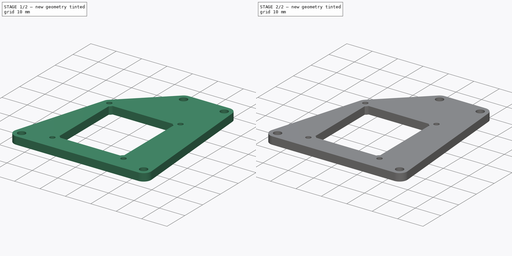
[diagram: build sequence overview — one tinted view per stage of 2, left to right]
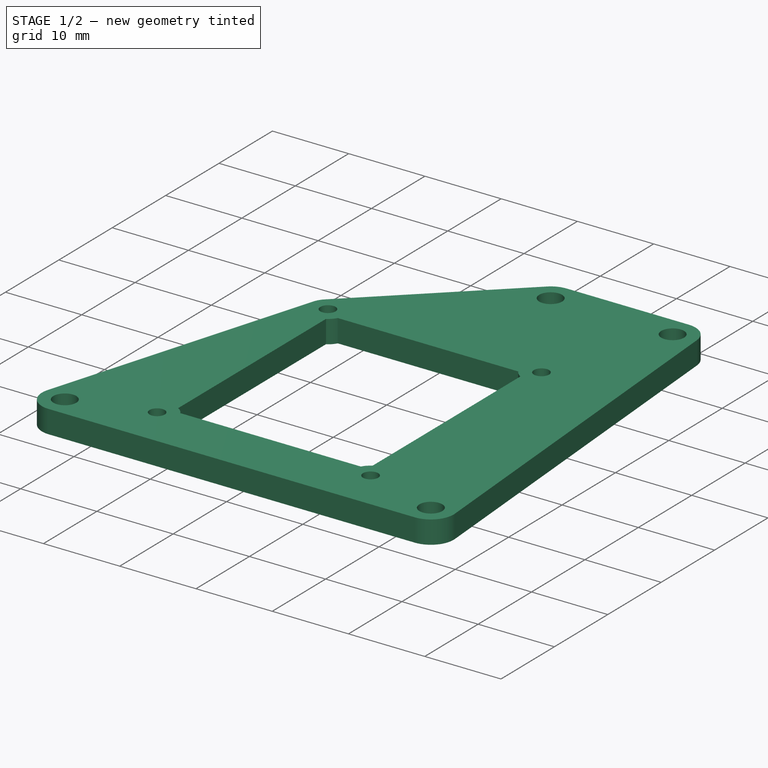
[diagram: stage 1 of 2 — iso view after this stage's code; geometry added in this stage tinted green]
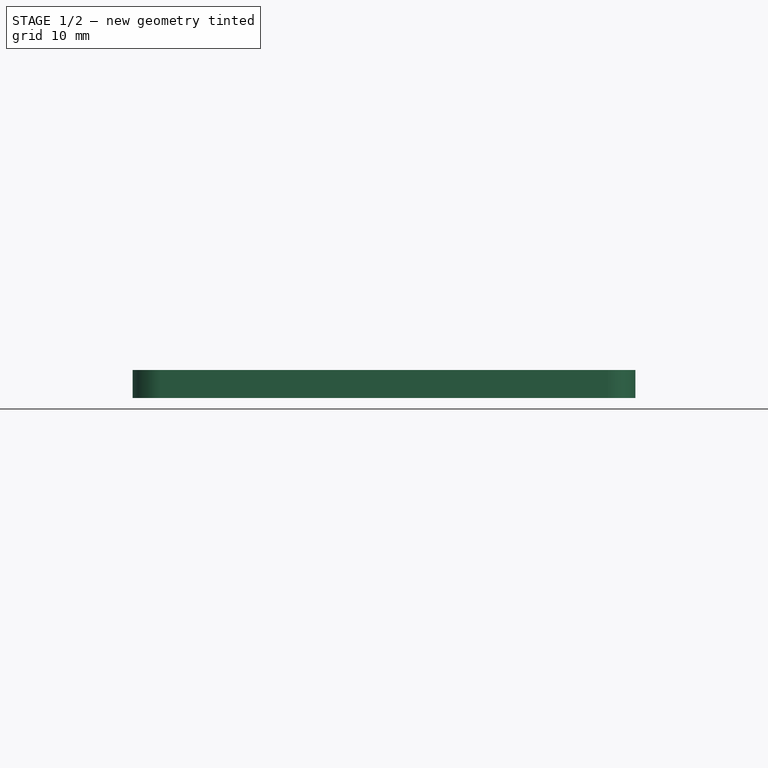
[diagram: stage 1 of 2 — front view after this stage's code; geometry added in this stage tinted green]
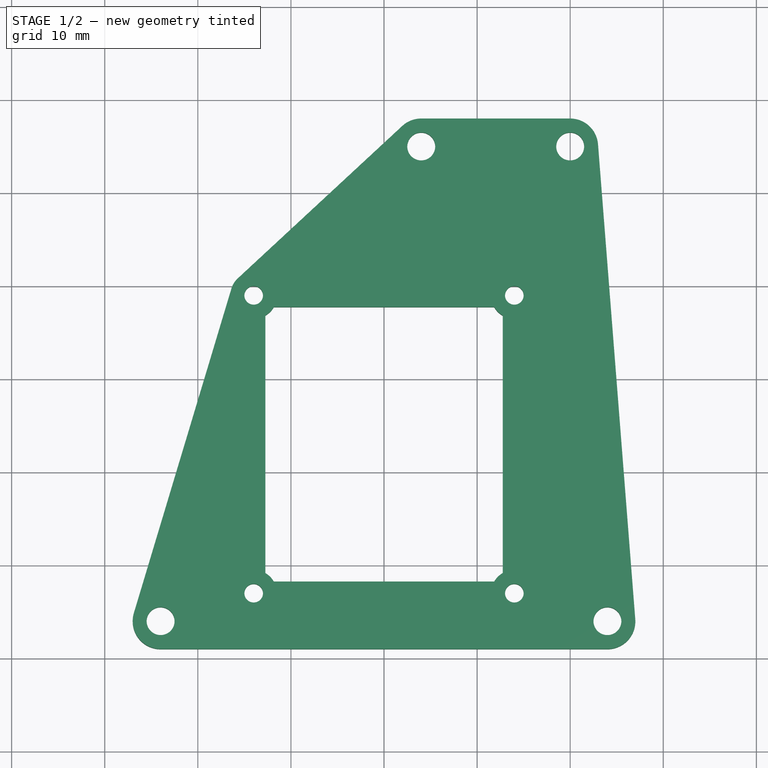
[diagram: stage 1 of 2 — top view after this stage's code; geometry added in this stage tinted green]
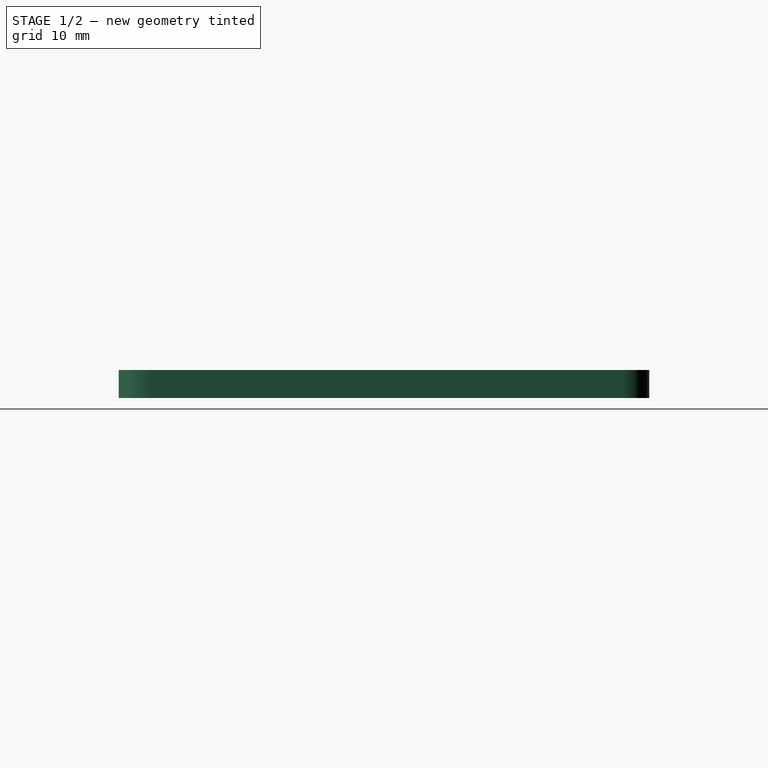
[diagram: stage 1 of 2 — right view after this stage's code; geometry added in this stage tinted green]
FCSTD DOCUMENT  (FreeCAD 0.17R13541 (Git))
Label: top
License: All rights reserved
LicenseURL: http://en.wikipedia.org/wiki/All_rights_reserved
objects: Sketcher::SketchObject×3, PartDesign::Pad×1, PartDesign::Pocket×1, PartDesign::Body×1
note: 8 computed .brp shape members not serialized (recipe doc carries the construction recipe); baked Part::Feature solids carry a one-line shape summary decoded from their .brp

FEATURE [Sketcher::SketchObject] Sketch
  MapMode = 5
  Support = -> [XY_Plane]
  sketch-geometry (54):
    g0: LineSegment [constr] StartX=-24.5 StartY=29 StartZ=0 EndX=24.5 EndY=29 EndZ=0
    g1: LineSegment [constr] StartX=-24.5 StartY=29 StartZ=0 EndX=-24.5 EndY=-29 EndZ=0
    g2: LineSegment [constr] StartX=-24.5 StartY=-29 StartZ=0 EndX=24.5 EndY=-29 EndZ=0
    g3: LineSegment [constr] StartX=24.5 StartY=-29 StartZ=0 EndX=24.5 EndY=29 EndZ=0
    g4: GeomPoint X=0 Y=29 Z=0
    g5: GeomPoint X=-24.5 Y=0 Z=0
    g6: LineSegment [constr] StartX=-24 StartY=-16 StartZ=0 EndX=24 EndY=-16 EndZ=0
    g7: LineSegment [constr] StartX=24 StartY=-16 StartZ=0 EndX=24 EndY=35 EndZ=0
    g8: LineSegment [constr] StartX=24 StartY=35 StartZ=0 EndX=-4 EndY=35 EndZ=0
    g9: LineSegment [constr] StartX=-4 StartY=35 StartZ=0 EndX=-20 EndY=35 EndZ=0
    g10: LineSegment [constr] StartX=-20 StartY=35 StartZ=0 EndX=-24 EndY=35 EndZ=0
    g11: LineSegment [constr] StartX=-24 StartY=35 StartZ=0 EndX=-24 EndY=-16 EndZ=0
    g12: GeomPoint X=0 Y=-16 Z=0
    g13: GeomPoint X=0 Y=-29 Z=0
    g14: Circle CenterX=24 CenterY=-16 CenterZ=0 NormalX=0 NormalY=0 NormalZ=1 AngleXU=0 Radius=1.5
    g15: Circle CenterX=-24 CenterY=-16 CenterZ=0 NormalX=0 NormalY=0 NormalZ=1 AngleXU=0 Radius=1.5
    g16: Circle CenterX=-20 CenterY=35 CenterZ=0 NormalX=0 NormalY=0 NormalZ=1 AngleXU=0 Radius=1.5
    g17: Circle CenterX=-4 CenterY=35 CenterZ=0 NormalX=0 NormalY=0 NormalZ=1 AngleXU=0 Radius=1.5
    g18: ArcOfCircle CenterX=24 CenterY=-16 CenterZ=0 NormalX=0 NormalY=0 NormalZ=1 AngleXU=0 Radius=3 StartAngle=4.71239 EndAngle=6.60098
    g19: ArcOfCircle CenterX=-20 CenterY=35 CenterZ=0 NormalX=0 NormalY=0 NormalZ=1 AngleXU=0 Radius=3 StartAngle=1.5708 EndAngle=3.06332
    g20: ArcOfCircle CenterX=-4 CenterY=35 CenterZ=0 NormalX=0 NormalY=0 NormalZ=1 AngleXU=0 Radius=3 StartAngle=0.739273 EndAngle=1.5708
    g21: LineSegment StartX=-20 StartY=38 StartZ=0 EndX=-4 EndY=38 EndZ=0
    g22: Circle CenterX=-14 CenterY=16 CenterZ=0 NormalX=0 NormalY=0 NormalZ=1 AngleXU=0 Radius=1
    g23: Circle CenterX=14 CenterY=16 CenterZ=0 NormalX=0 NormalY=0 NormalZ=1 AngleXU=0 Radius=1
    g24: Circle CenterX=-14 CenterY=-16 CenterZ=0 NormalX=0 NormalY=0 NormalZ=1 AngleXU=0 Radius=1
    g25: Circle CenterX=14 CenterY=-16 CenterZ=0 NormalX=0 NormalY=0 NormalZ=1 AngleXU=0 Radius=1
    g26: LineSegment [constr] StartX=-14 StartY=-16 StartZ=0 EndX=14 EndY=-16 EndZ=0
    g27: LineSegment [constr] StartX=14 StartY=-16 StartZ=0 EndX=14 EndY=16 EndZ=0
    g28: LineSegment [constr] StartX=-14 StartY=16 StartZ=0 EndX=14 EndY=16 EndZ=0
    g29: LineSegment [constr] StartX=-14 StartY=16 StartZ=0 EndX=-14 EndY=-16 EndZ=0
    g30: ArcOfCircle CenterX=-14 CenterY=16 CenterZ=0 NormalX=0 NormalY=0 NormalZ=1 AngleXU=0 Radius=2.5 StartAngle=5.23599 EndAngle=5.75959
    g31: ArcOfCircle CenterX=-14 CenterY=-16 CenterZ=0 NormalX=0 NormalY=0 NormalZ=1 AngleXU=0 Radius=2.5 StartAngle=0.523599 EndAngle=1.0472
    g32: ArcOfCircle CenterX=14 CenterY=16 CenterZ=0 NormalX=0 NormalY=0 NormalZ=1 AngleXU=0 Radius=2.5 StartAngle=0.317799 EndAngle=0.739273
    g33: GeomPoint X=0 Y=-16 Z=0
    g34: GeomPoint X=-14 Y=0 Z=0
    g35: ArcOfCircle CenterX=-24 CenterY=-16 CenterZ=0 NormalX=0 NormalY=0 NormalZ=1 AngleXU=0 Radius=3 StartAngle=3.06332 EndAngle=4.71239
    g36: LineSegment StartX=24 StartY=-19 StartZ=0 EndX=-24 EndY=-19 EndZ=0
    g37: LineSegment StartX=16.3748 StartY=16.7812 StartZ=0 EndX=26.8498 EndY=-15.0626 EndZ=0
    g38: LineSegment StartX=15.8474 StartY=17.6844 StartZ=0 EndX=-1.78312 EndY=37.0213 EndZ=0
    g39: LineSegment StartX=-22.9908 StartY=35.2346 StartZ=0 EndX=-26.9908 EndY=-15.7654 EndZ=0
    g40: LineSegment StartX=-12.75 StartY=13.8349 StartZ=0 EndX=-12.75 EndY=-13.8349 EndZ=0
    g41: LineSegment StartX=11.8349 StartY=14.75 StartZ=0 EndX=-11.8349 EndY=14.75 EndZ=0
    g42: LineSegment [constr] StartX=-11.8349 StartY=-14.75 StartZ=0 EndX=-14 EndY=-16 EndZ=0
    g43: LineSegment [constr] StartX=-12.75 StartY=-13.8349 StartZ=0 EndX=-14 EndY=-16 EndZ=0
    g44: LineSegment [constr] StartX=-11.8349 StartY=14.75 StartZ=0 EndX=-14 EndY=16 EndZ=0
    g45: ArcOfCircle CenterX=14 CenterY=16 CenterZ=0 NormalX=0 NormalY=0 NormalZ=1 AngleXU=0 Radius=2.5 StartAngle=3.66519 EndAngle=4.18879
    g46: LineSegment [constr] StartX=11.8349 StartY=14.75 StartZ=0 EndX=14 EndY=16 EndZ=0
    g47: ArcOfCircle CenterX=14 CenterY=-16 CenterZ=0 NormalX=0 NormalY=0 NormalZ=1 AngleXU=0 Radius=2.5 StartAngle=2.0944 EndAngle=2.61799
    g48: LineSegment [constr] StartX=12.75 StartY=13.8349 StartZ=0 EndX=14 EndY=16 EndZ=0
    g49: LineSegment [constr] StartX=-12.75 StartY=13.8349 StartZ=0 EndX=-14 EndY=16 EndZ=0
    g50: LineSegment [constr] StartX=11.8349 StartY=-14.75 StartZ=0 EndX=14 EndY=-16 EndZ=0
    g51: LineSegment StartX=12.75 StartY=-13.8349 StartZ=0 EndX=12.75 EndY=13.8349 EndZ=0
    g52: LineSegment StartX=-11.8349 StartY=-14.75 StartZ=0 EndX=11.8349 EndY=-14.75 EndZ=0
    g53: LineSegment [constr] StartX=12.75 StartY=-13.8349 StartZ=0 EndX=14 EndY=-16 EndZ=0
  constraints (136):
    c: Horizontal(g0)
    c: Coincident(g1,g0)
    c: Vertical(g1)
    c: Coincident(g2,g1)
    c: Horizontal(g2)
    c: Coincident(g3,g2)
    c: Coincident(g3,g0)
    c: Vertical(g3)
    c: Distance(g2) = 49
    c: Distance(g1) = 58
    c: PointOnObject(g4,g-2)
    c: PointOnObject(g5,g-1)
    c: Symmetric(g1,g1,g5)
    c: Symmetric(g0,g0,g4)
    c: Horizontal(g6)
    c: Coincident(g7,g6)
    c: Vertical(g7)
    c: Coincident(g8,g7)
    c: Horizontal(g8)
    c: Coincident(g9,g8)
    c: Horizontal(g9)
    c: Coincident(g10,g9)
    c: Horizontal(g10)
    c: Coincident(g11,g10)
    c: Coincident(g11,g6)
    c: Vertical(g11)
    c: Distance(g6) = 48
    c: PointOnObject(g12,g-2)
    c: Symmetric(g6,g6,g12)
    c: Distance(g8) = 28
    c: Distance(g9) = 16
    c: PointOnObject(g13,g2)
    c: PointOnObject(g13,g-2)
    c: Distance(g12,g13) = 13
    c: Coincident(g14,g6)
    c: Coincident(g15,g6)
    c: Radius(g15) = 1.5
    c: Radius(g14) = 1.5
    c: Coincident(g16,g9)
    c: Coincident(g17,g8)
    c: Radius(g17) = 1.5
    c: Radius(g16) = 1.5
    c: Distance(g11) = 51
    c: Coincident(g18,g6)
    c: Radius(g18) = 3
    c: Coincident(g19,g9)
    c: Coincident(g20,g8)
    c: Radius(g19) = 3
    c: Radius(g20) = 3
    c: Horizontal(g21)
    c: Tangent(g21,g20)
    c: Coincident(g26,g24)
    c: Coincident(g26,g25)
    c: Horizontal(g26)
    c: Coincident(g27,g25)
    c: Coincident(g27,g23)
    c: Coincident(g28,g22)
    c: Coincident(g28,g23)
    c: Coincident(g29,g22)
    c: Coincident(g29,g24)
    c: Vertical(g29)
    c: Horizontal(g28)
    c: Vertical(g27)
    c: Radius(g22) = 1
    c: Radius(g23) = 1
    c: Radius(g25) = 1
    c: Radius(g24) = 1
    c: Coincident(g30,g22)
    c: Coincident(g31,g24)
    c: Radius(g31) = 2.5
    c: Coincident(g32,g23)
    c: Radius(g32) = 2.5
    c: Distance(g27) = 32
    c: Distance(g26) = 28
    c: PointOnObject(g33,g-2)
    c: Symmetric(g26,g26,g33)
    c: PointOnObject(g34,g-1)
    c: Symmetric(g29,g29,g34)
    c: Coincident(g35,g6)
    c: Radius(g35) = 3
    c: Horizontal(g36)
    c: Tangent(g36,g18) = 1.5708
    c: Tangent(g37,g18) = 1.5708
    c: Coincident(g20,g21)
    c: Tangent(g38,g20) = -1.5708
    c: Tangent(g38,g32)
    c: Tangent(g19,g21) = 1.5708
    c: Tangent(g39,g35) = -1.5708
    c: Tangent(g39,g19) = -1.5708
    c: Vertical(g40)
    c: Horizontal(g41)
    c: Angle(g24,g29) = 0.523599
    c: Angle(g26,g24) = 0.523599
    c: Angle(g22,g28) = 0.523599
    c: Angle(g27,g25) = 0.523599
    c: Coincident(g30,g40)
    c: Coincident(g30,g41)
    c: Coincident(g31,g40)
    c: Coincident(g42,g31)
    c: Coincident(g42,g24)
    c: Coincident(g43,g31)
    c: Coincident(g43,g24)
    c: Angle(g26,g42) = 0.523599
    c: Angle(g43,g29) = 0.523599
    c: Coincident(g44,g30)
    c: Coincident(g44,g22)
    c: Angle(g44,g28) = 0.523599
    c: Coincident(g45,g41)
    c: Coincident(g32,g45)
    c: Coincident(g32,g38)
    c: Tangent(g32,g37) = 1.5708
    c: Equal(g45,g32)
    c: Coincident(g46,g41)
    c: Coincident(g46,g23)
    c: Angle(g23,g27) = 0.523599
    c: Angle(g27,g25) = 0.523599
    c: Angle(g25,g6) = 0.523599
    c: Coincident(g48,g45)
    c: Coincident(g48,g23)
    c: Angle(g48,g27) = 0.523599
    c: Coincident(g49,g22)
    c: Coincident(g51,g47)
    c: Coincident(g51,g45)
    c: Vertical(g51)
    c: Angle(g50,g6) = 0.523599
    c: Angle(g28,g46) = 0.523599
    c: Angle(g29,g49) = 0.523599
    c: Coincident(g52,g31)
    c: Coincident(g52,g47)
    c: Horizontal(g52)
    c: Tangent(g35,g36)
    c: Coincident(g53,g47)
    c: Coincident(g53,g25)
    c: Angle(g27,g53) = 0.523599
    c: Radius(g47) = 2.5
    c: Radius(g30) = 2.5
FEATURE [Sketcher::SketchObject] Sketch001
  MapMode = 5
  Support = -> [XY_Plane]
  sketch-geometry (48):
    g0: LineSegment [constr] StartX=-24.5 StartY=29 StartZ=0 EndX=-24.5 EndY=-29 EndZ=0
    g1: LineSegment [constr] StartX=-24.5 StartY=-29 StartZ=0 EndX=24.5 EndY=-29 EndZ=0
    g2: LineSegment [constr] StartX=24.5 StartY=-29 StartZ=0 EndX=24.5 EndY=29 EndZ=0
    g3: LineSegment [constr] StartX=24.5 StartY=29 StartZ=0 EndX=-24.5 EndY=29 EndZ=0
    g4: GeomPoint X=0 Y=-29 Z=0
    g5: GeomPoint X=-24.5 Y=0 Z=0
    g6: LineSegment [constr] StartX=-24 StartY=-16 StartZ=0 EndX=24 EndY=-16 EndZ=0
    g7: LineSegment [constr] StartX=-24 StartY=-16 StartZ=0 EndX=-24 EndY=35 EndZ=0
    g8: LineSegment [constr] StartX=-24 StartY=35 StartZ=0 EndX=4 EndY=35 EndZ=0
    g9: LineSegment [constr] StartX=4 StartY=35 StartZ=0 EndX=20 EndY=35 EndZ=0
    g10: LineSegment [constr] StartX=20 StartY=35 StartZ=0 EndX=24 EndY=35 EndZ=0
    g11: LineSegment [constr] StartX=24 StartY=35 StartZ=0 EndX=24 EndY=-16 EndZ=0
    g12: GeomPoint X=0 Y=-16 Z=0
    g13: Circle CenterX=20 CenterY=35 CenterZ=0 NormalX=0 NormalY=0 NormalZ=1 AngleXU=0 Radius=1.5
    g14: Circle CenterX=4 CenterY=35 CenterZ=0 NormalX=0 NormalY=0 NormalZ=1 AngleXU=0 Radius=1.5
    g15: Circle CenterX=-24 CenterY=-16 CenterZ=0 NormalX=0 NormalY=0 NormalZ=1 AngleXU=0 Radius=1.5
    g16: Circle CenterX=24 CenterY=-16 CenterZ=0 NormalX=0 NormalY=0 NormalZ=1 AngleXU=0 Radius=1.5
    g17: LineSegment StartX=26.9908 StartY=-15.7654 StartZ=0 EndX=22.9908 EndY=35.2346 EndZ=0
    g18: LineSegment StartX=-24 StartY=-19 StartZ=0 EndX=24 EndY=-19 EndZ=0
    g19: ArcOfCircle CenterX=-24 CenterY=-16 CenterZ=0 NormalX=0 NormalY=0 NormalZ=1 AngleXU=0 Radius=3 StartAngle=2.84956 EndAngle=4.71239
    g20: ArcOfCircle CenterX=24 CenterY=-16 CenterZ=0 NormalX=0 NormalY=0 NormalZ=1 AngleXU=0 Radius=3 StartAngle=4.71239 EndAngle=6.36146
    g21: ArcOfCircle CenterX=20 CenterY=35 CenterZ=0 NormalX=0 NormalY=0 NormalZ=1 AngleXU=0 Radius=3 StartAngle=0.0782711 EndAngle=1.5708
    g22: ArcOfCircle CenterX=4 CenterY=35 CenterZ=0 NormalX=0 NormalY=0 NormalZ=1 AngleXU=0 Radius=3 StartAngle=1.5708 EndAngle=2.3182
    g23: LineSegment StartX=20 StartY=38 StartZ=0 EndX=4 EndY=38 EndZ=0
    g24: LineSegment [constr] StartX=-14 StartY=19 StartZ=0 EndX=-14 EndY=-13 EndZ=0
    g25: LineSegment [constr] StartX=-14 StartY=-13 StartZ=0 EndX=14 EndY=-13 EndZ=0
    g26: LineSegment [constr] StartX=14 StartY=-13 StartZ=0 EndX=14 EndY=19 EndZ=0
    g27: LineSegment [constr] StartX=14 StartY=19 StartZ=0 EndX=-14 EndY=19 EndZ=0
    g28: GeomPoint X=0 Y=-13 Z=0
    g29: Circle CenterX=-14 CenterY=19 CenterZ=0 NormalX=0 NormalY=0 NormalZ=1 AngleXU=0 Radius=1
    g30: ArcOfCircle CenterX=-14 CenterY=19 CenterZ=0 NormalX=0 NormalY=0 NormalZ=1 AngleXU=0 Radius=2.5 StartAngle=5.23599 EndAngle=5.75959
    g31: Circle CenterX=14 CenterY=19 CenterZ=0 NormalX=0 NormalY=0 NormalZ=1 AngleXU=0 Radius=1
    g32: ArcOfCircle CenterX=14 CenterY=19 CenterZ=0 NormalX=0 NormalY=0 NormalZ=1 AngleXU=0 Radius=2.5 StartAngle=3.66519 EndAngle=4.18879
    g33: ArcOfCircle CenterX=-14 CenterY=-13 CenterZ=0 NormalX=0 NormalY=0 NormalZ=1 AngleXU=0 Radius=2.5 StartAngle=0.523599 EndAngle=1.0472
    g34: Circle CenterX=-14 CenterY=-13 CenterZ=0 NormalX=0 NormalY=0 NormalZ=1 AngleXU=0 Radius=1
    g35: Circle CenterX=14 CenterY=-13 CenterZ=0 NormalX=0 NormalY=0 NormalZ=1 AngleXU=0 Radius=1
    g36: ArcOfCircle CenterX=14 CenterY=-13 CenterZ=0 NormalX=0 NormalY=0 NormalZ=1 AngleXU=0 Radius=2.5 StartAngle=2.0944 EndAngle=2.61799
    g37: LineSegment StartX=1.96079 StartY=37.2004 StartZ=0 EndX=-15.6993 EndY=20.8337 EndZ=0
    g38: LineSegment StartX=-11.8349 StartY=-11.75 StartZ=0 EndX=11.8349 EndY=-11.75 EndZ=0
    g39: LineSegment StartX=-12.75 StartY=-10.8349 StartZ=0 EndX=-12.75 EndY=16.8349 EndZ=0
    g40: LineSegment StartX=-11.8349 StartY=17.75 StartZ=0 EndX=11.8349 EndY=17.75 EndZ=0
    g41: LineSegment StartX=12.75 StartY=16.8349 StartZ=0 EndX=12.75 EndY=-10.8349 EndZ=0
    g42: ArcOfCircle CenterX=-14 CenterY=19 CenterZ=0 NormalX=0 NormalY=0 NormalZ=1 AngleXU=0 Radius=2.5 StartAngle=2.31819 EndAngle=2.84956
    g43: LineSegment [constr] StartX=-11.8349 StartY=17.75 StartZ=0 EndX=-14 EndY=19 EndZ=0
    g44: LineSegment [constr] StartX=-12.75 StartY=16.8349 StartZ=0 EndX=-14 EndY=19 EndZ=0
    g45: LineSegment [constr] StartX=-14 StartY=-13 StartZ=0 EndX=-11.8349 EndY=-11.75 EndZ=0
    g46: LineSegment [constr] StartX=12.75 StartY=-10.8349 StartZ=0 EndX=14 EndY=-13 EndZ=0
    g47: LineSegment StartX=-26.873 StartY=-15.1363 StartZ=0 EndX=-16.3941 EndY=19.7198 EndZ=0
  constraints (115):
    c: Vertical(g0)
    c: Coincident(g1,g0)
    c: Horizontal(g1)
    c: Coincident(g2,g1)
    c: Vertical(g2)
    c: Coincident(g3,g2)
    c: Coincident(g3,g0)
    c: Horizontal(g3)
    c: PointOnObject(g4,g-2)
    c: PointOnObject(g5,g-1)
    c: Symmetric(g0,g0,g5)
    c: Symmetric(g1,g1,g4)
    c: Distance(g3) = 49
    c: Distance(g0) = 58
    c: Horizontal(g6)
    c: Coincident(g7,g6)
    c: Vertical(g7)
    c: Coincident(g8,g7)
    c: Horizontal(g8)
    c: Coincident(g9,g8)
    c: Horizontal(g9)
    c: Coincident(g10,g9)
    c: Horizontal(g10)
    c: Coincident(g11,g10)
    c: Coincident(g11,g6)
    c: Vertical(g11)
    c: Distance(g6) = 48
    c: Distance(g8) = 28
    c: Distance(g9) = 16
    c: PointOnObject(g12,g-2)
    c: Symmetric(g6,g6,g12)
    c: Distance(g7) = 51
    c: Distance(g12,g4) = 13
    c: Coincident(g13,g9)
    c: Coincident(g14,g8)
    c: Coincident(g15,g6)
    c: Coincident(g16,g6)
    c: Radius(g15) = 1.5
    c: Radius(g16) = 1.5
    c: Radius(g14) = 1.5
    c: Radius(g13) = 1.5
    c: Horizontal(g18)
    c: Coincident(g19,g6)
    c: Tangent(g19,g18) = -1.5708
    c: Radius(g19) = 3
    c: Coincident(g20,g6)
    c: Tangent(g20,g18) = -1.5708
    c: Tangent(g20,g17) = -1.5708
    c: Coincident(g21,g9)
    c: Tangent(g21,g17) = -1.5708
    c: Radius(g21) = 3
    c: Coincident(g22,g8)
    c: Horizontal(g23)
    c: Tangent(g23,g22) = -1.5708
    c: Tangent(g23,g21) = -1.5708
    c: Vertical(g24)
    c: Coincident(g25,g24)
    c: Horizontal(g25)
    c: Coincident(g26,g25)
    c: Vertical(g26)
    c: Coincident(g27,g26)
    c: Coincident(g27,g24)
    c: Horizontal(g27)
    c: Distance(g24) = 32
    c: Distance(g27) = 28
    c: PointOnObject(g28,g-2)
    c: Symmetric(g25,g25,g28)
    c: Coincident(g29,g24)
    c: Coincident(g30,g24)
    c: Radius(g30) = 2.5
    c: Radius(g29) = 1
    c: Coincident(g31,g26)
    c: Coincident(g32,g26)
    c: Radius(g31) = 1
    c: Radius(g32) = 2.5
    c: Distance(g12,g28) = 3
    c: Coincident(g33,g24)
    c: Coincident(g34,g24)
    c: Coincident(g35,g25)
    c: Coincident(g36,g25)
    c: Radius(g34) = 1
    c: Radius(g33) = 2.5
    c: Radius(g36) = 2.5
    c: Radius(g35) = 1
    c: Tangent(g37,g30)
    c: Tangent(g37,g22) = -1.5708
    c: Horizontal(g38)
    c: Vertical(g39)
    c: Horizontal(g40)
    c: Vertical(g41)
    c: Coincident(g32,g41)
    c: Coincident(g32,g40)
    c: Equal(g30,g42)
    c: Coincident(g42,g37)
    c: Coincident(g30,g42)
    c: Coincident(g30,g39)
    c: Coincident(g30,g40)
    c: Coincident(g33,g38)
    c: Coincident(g33,g39)
    c: Coincident(g36,g38)
    c: Coincident(g36,g41)
    c: Coincident(g43,g30)
    c: Coincident(g43,g24)
    c: Angle(g43,g27) = 0.523599
    c: Coincident(g44,g30)
    c: Coincident(g44,g24)
    c: Angle(g24,g44) = 0.523599
    c: Coincident(g45,g24)
    c: Coincident(g45,g33)
    c: Angle(g25,g45) = 0.523599
    c: Coincident(g46,g36)
    c: Coincident(g46,g25)
    c: Angle(g26,g46) = 0.523599
    c: Tangent(g47,g42) = 1.5708
    c: Tangent(g47,g19) = 1.5708
FEATURE [PartDesign::Pad] Pad
  Length = 1.5
  Length2 = 1.5
  Profile = -> Sketch001
  Type = 4
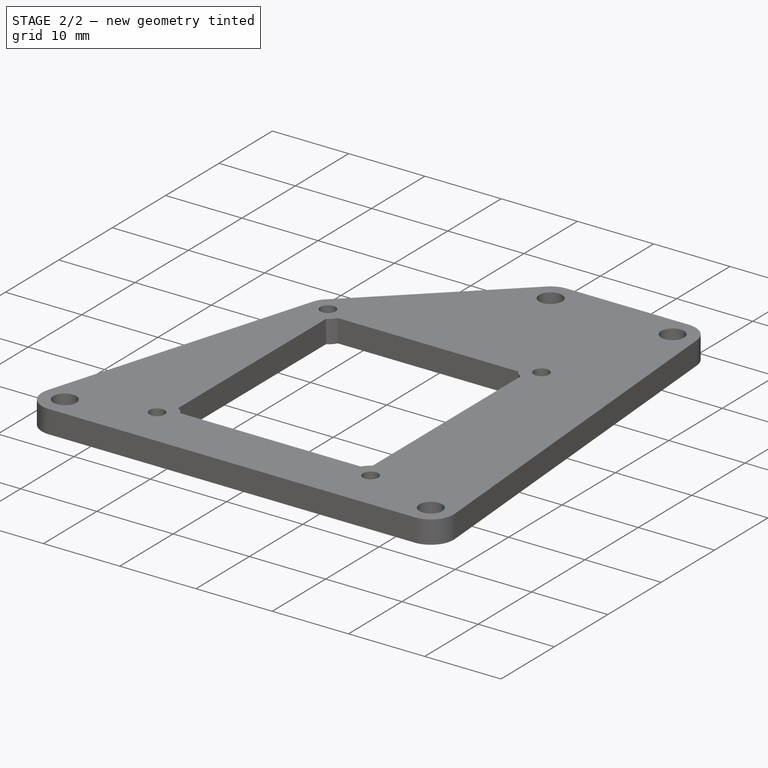
[diagram: stage 2 of 2 — iso view after this stage's code; geometry added in this stage tinted green]
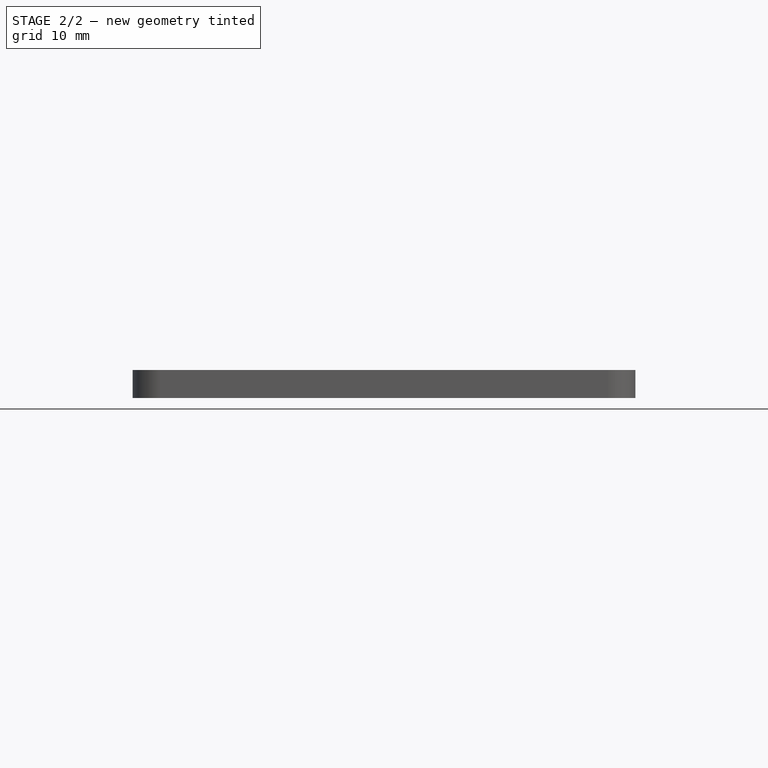
[diagram: stage 2 of 2 — front view after this stage's code; geometry added in this stage tinted green]
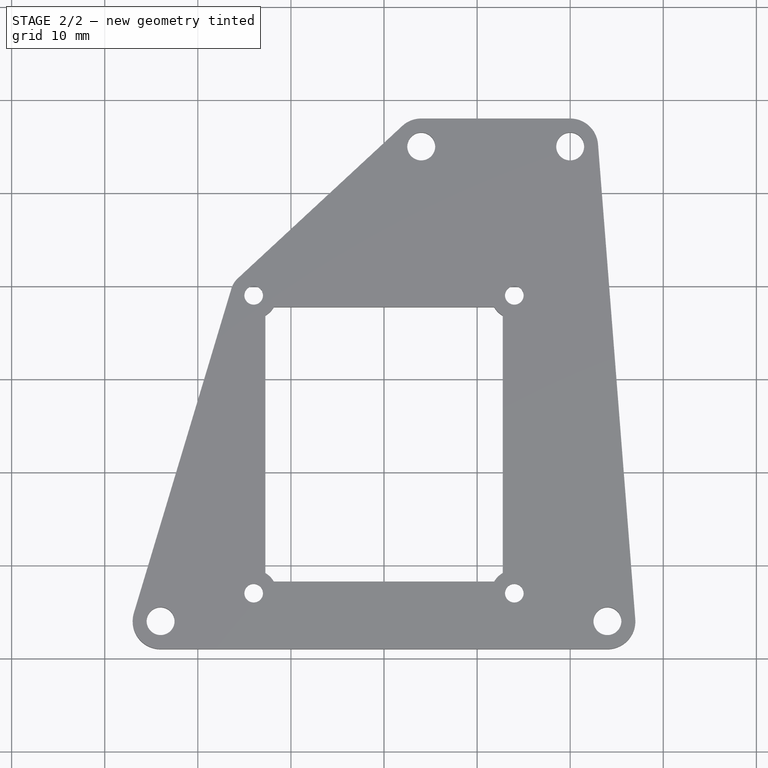
[diagram: stage 2 of 2 — top view after this stage's code; geometry added in this stage tinted green]
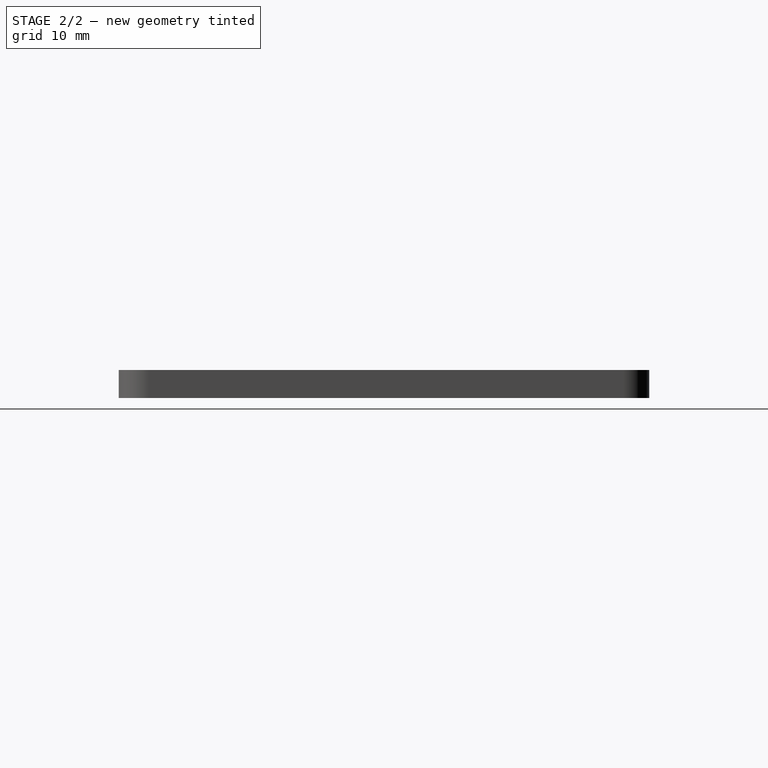
[diagram: stage 2 of 2 — right view after this stage's code; geometry added in this stage tinted green]
FEATURE [Sketcher::SketchObject] Sketch002
  MapMode = 5
  Support = -> [XY_Plane]
  sketch-geometry (47):
    g0: LineSegment [constr] StartX=-24.5 StartY=-29 StartZ=0 EndX=24.5 EndY=-29 EndZ=0
    g1: LineSegment [constr] StartX=24.5 StartY=-29 StartZ=0 EndX=24.5 EndY=29 EndZ=0
    g2: LineSegment [constr] StartX=-24.5 StartY=-29 StartZ=0 EndX=-24.5 EndY=29 EndZ=0
    g3: LineSegment [constr] StartX=-24.5 StartY=29 StartZ=0 EndX=24.5 EndY=29 EndZ=0
    g4: GeomPoint X=-24.5 Y=0 Z=0
    g5: GeomPoint X=0 Y=-29 Z=0
    g6: LineSegment [constr] StartX=-14 StartY=19 StartZ=0 EndX=-14 EndY=-13 EndZ=0
    g7: LineSegment [constr] StartX=-14 StartY=-13 StartZ=0 EndX=14 EndY=-13 EndZ=0
    g8: LineSegment [constr] StartX=-14 StartY=19 StartZ=0 EndX=14 EndY=19 EndZ=0
    g9: LineSegment [constr] StartX=14 StartY=-13 StartZ=0 EndX=14 EndY=19 EndZ=0
    g10: GeomPoint X=0 Y=-13 Z=0
    g11: Circle CenterX=-14 CenterY=-13 CenterZ=0 NormalX=0 NormalY=0 NormalZ=1 AngleXU=0 Radius=1
    g12: Circle CenterX=14 CenterY=-13 CenterZ=0 NormalX=0 NormalY=0 NormalZ=1 AngleXU=0 Radius=1
    g13: Circle CenterX=14 CenterY=19 CenterZ=0 NormalX=0 NormalY=0 NormalZ=1 AngleXU=0 Radius=1
    g14: Circle CenterX=-14 CenterY=19 CenterZ=0 NormalX=0 NormalY=0 NormalZ=1 AngleXU=0 Radius=1
    g15: LineSegment StartX=-13.2783 StartY=-14.25 StartZ=0 EndX=-12.5566 EndY=-13 EndZ=0
    g16: LineSegment StartX=-12.5566 StartY=-13 StartZ=0 EndX=-13.2783 EndY=-11.75 EndZ=0
    g17: LineSegment StartX=-13.2783 StartY=-11.75 StartZ=0 EndX=-14.7217 EndY=-11.75 EndZ=0
    g18: LineSegment StartX=-14.7217 StartY=-11.75 StartZ=0 EndX=-15.4434 EndY=-13 EndZ=0
    g19: LineSegment StartX=-15.4434 StartY=-13 StartZ=0 EndX=-14.7217 EndY=-14.25 EndZ=0
    g20: LineSegment StartX=-14.7217 StartY=-14.25 StartZ=0 EndX=-13.2783 EndY=-14.25 EndZ=0
    g21: Circle [constr] CenterX=-14 CenterY=-13 CenterZ=0 NormalX=0 NormalY=0 NormalZ=1 AngleXU=0 Radius=1.44338
    g22: LineSegment [constr] StartX=-15.4434 StartY=-13 StartZ=0 EndX=-13.2783 EndY=-14.25 EndZ=0
    g23: LineSegment StartX=14.7217 StartY=-14.25 StartZ=0 EndX=15.4434 EndY=-13 EndZ=0
    g24: LineSegment StartX=15.4434 StartY=-13 StartZ=0 EndX=14.7217 EndY=-11.75 EndZ=0
    g25: LineSegment StartX=14.7217 StartY=-11.75 StartZ=0 EndX=13.2783 EndY=-11.75 EndZ=0
    g26: LineSegment StartX=13.2783 StartY=-11.75 StartZ=0 EndX=12.5566 EndY=-13 EndZ=0
    g27: LineSegment StartX=12.5566 StartY=-13 StartZ=0 EndX=13.2783 EndY=-14.25 EndZ=0
    g28: LineSegment StartX=13.2783 StartY=-14.25 StartZ=0 EndX=14.7217 EndY=-14.25 EndZ=0
    g29: Circle [constr] CenterX=14 CenterY=-13 CenterZ=0 NormalX=0 NormalY=0 NormalZ=1 AngleXU=0 Radius=1.44338
    g30: LineSegment [constr] StartX=12.5566 StartY=-13 StartZ=0 EndX=14.7217 EndY=-14.25 EndZ=0
    g31: LineSegment StartX=14.7217 StartY=17.75 StartZ=0 EndX=15.4434 EndY=19 EndZ=0
    g32: LineSegment StartX=15.4434 StartY=19 StartZ=0 EndX=14.7217 EndY=20.25 EndZ=0
    g33: LineSegment StartX=14.7217 StartY=20.25 StartZ=0 EndX=13.2783 EndY=20.25 EndZ=0
    g34: LineSegment StartX=13.2783 StartY=20.25 StartZ=0 EndX=12.5566 EndY=19 EndZ=0
    g35: LineSegment StartX=12.5566 StartY=19 StartZ=0 EndX=13.2783 EndY=17.75 EndZ=0
    g36: LineSegment StartX=13.2783 StartY=17.75 StartZ=0 EndX=14.7217 EndY=17.75 EndZ=0
    g37: Circle [constr] CenterX=14 CenterY=19 CenterZ=0 NormalX=0 NormalY=0 NormalZ=1 AngleXU=0 Radius=1.44338
    g38: LineSegment [constr] StartX=13.2783 StartY=20.25 StartZ=0 EndX=15.4434 EndY=19 EndZ=0
    g39: LineSegment StartX=-13.2783 StartY=17.75 StartZ=0 EndX=-12.5566 EndY=19 EndZ=0
    g40: LineSegment StartX=-12.5566 StartY=19 StartZ=0 EndX=-13.2783 EndY=20.25 EndZ=0
    g41: LineSegment StartX=-13.2783 StartY=20.25 StartZ=0 EndX=-14.7217 EndY=20.25 EndZ=0
    g42: LineSegment StartX=-14.7217 StartY=20.25 StartZ=0 EndX=-15.4434 EndY=19 EndZ=0
    g43: LineSegment StartX=-15.4434 StartY=19 StartZ=0 EndX=-14.7217 EndY=17.75 EndZ=0
    g44: LineSegment StartX=-14.7217 StartY=17.75 StartZ=0 EndX=-13.2783 EndY=17.75 EndZ=0
    g45: Circle [constr] CenterX=-14 CenterY=19 CenterZ=0 NormalX=0 NormalY=0 NormalZ=1 AngleXU=0 Radius=1.44338
    g46: LineSegment [constr] StartX=-14.7217 StartY=20.25 StartZ=0 EndX=-12.5566 EndY=19 EndZ=0
  constraints (107):
    c: Horizontal(g0)
    c: Coincident(g1,g0)
    c: Vertical(g1)
    c: Coincident(g2,g0)
    c: Vertical(g2)
    c: Coincident(g3,g2)
    c: Coincident(g3,g1)
    c: Horizontal(g3)
    c: PointOnObject(g4,g-1)
    c: PointOnObject(g5,g-2)
    c: Symmetric(g2,g2,g4)
    c: Distance(g3) = 49
    c: Distance(g2) = 58
    c: Symmetric(g0,g0,g5)
    c: Vertical(g6)
    c: Coincident(g7,g6)
    c: Horizontal(g7)
    c: Coincident(g8,g6)
    c: Horizontal(g8)
    c: Coincident(g9,g7)
    c: Coincident(g9,g8)
    c: Vertical(g9)
    c: Distance(g8) = 28
    c: Distance(g6) = 32
    c: PointOnObject(g10,g-2)
    c: Symmetric(g7,g7,g10)
    c: Distance(g10,g5) = 16
    c: Coincident(g11,g6)
    c: Coincident(g12,g7)
    c: Coincident(g13,g8)
    c: Coincident(g14,g6)
    c: Radius(g13) = 1
    c: Radius(g14) = 1
    c: Radius(g11) = 1
    c: Radius(g12) = 1
    c: Coincident(g15,g16)
    c: Coincident(g16,g17)
    c: Coincident(g17,g18)
    c: Coincident(g18,g19)
    c: Coincident(g19,g20)
    c: Coincident(g20,g15)
    c: Equal(g15, g16-g20) x5
    c: PointOnObject(g15,g21)
    c: PointOnObject(g16,g21)
    c: PointOnObject(g17,g21)
    c: PointOnObject(g18,g21)
    c: PointOnObject(g19,g21)
    c: PointOnObject(g20,g21)
    c: Coincident(g21,g6)
    c: PointOnObject(g15,g7)
    c: Coincident(g22,g18)
    c: Coincident(g22,g15)
    c: Distance(g22) = 2.5
    c: Coincident(g23,g24)
    c: Coincident(g24,g25)
    c: Coincident(g25,g26)
    c: Coincident(g26,g27)
    c: Coincident(g27,g28)
    c: Coincident(g28,g23)
    c: Equal(g23, g24-g28) x5
    c: PointOnObject(g23,g29)
    c: PointOnObject(g24,g29)
    c: PointOnObject(g25,g29)
    c: PointOnObject(g26,g29)
    c: PointOnObject(g27,g29)
    c: PointOnObject(g28,g29)
    c: Coincident(g29,g7)
    c: PointOnObject(g26,g7)
    c: Coincident(g30,g26)
    c: Coincident(g30,g23)
    c: Distance(g30) = 2.5
    c: Coincident(g31,g32)
    c: Coincident(g32,g33)
    c: Coincident(g33,g34)
    c: Coincident(g34,g35)
    c: Coincident(g35,g36)
    c: Coincident(g36,g31)
    c: Equal(g31, g32-g36) x5
    c: PointOnObject(g31,g37)
    c: PointOnObject(g32,g37)
    c: PointOnObject(g33,g37)
    c: PointOnObject(g34,g37)
    c: PointOnObject(g35,g37)
    c: PointOnObject(g36,g37)
    c: Coincident(g37,g8)
    c: PointOnObject(g34,g8)
    c: Coincident(g38,g33)
    c: Coincident(g38,g31)
    c: Distance(g38) = 2.5
    c: Coincident(g39,g40)
    c: Coincident(g40,g41)
    c: Coincident(g41,g42)
    c: Coincident(g42,g43)
    c: Coincident(g43,g44)
    c: Coincident(g44,g39)
    c: Equal(g39, g40-g44) x5
    c: PointOnObject(g39,g45)
    c: PointOnObject(g40,g45)
    c: PointOnObject(g41,g45)
    c: PointOnObject(g42,g45)
    c: PointOnObject(g43,g45)
    c: PointOnObject(g44,g45)
    c: Coincident(g45,g6)
    c: PointOnObject(g39,g8)
    c: Coincident(g46,g41)
    c: Coincident(g46,g39)
    c: Distance(g46) = 2.5
FEATURE [PartDesign::Pocket] Pocket
  BaseFeature = -> Pad
  Length = 2
  Length2 = 100
  Profile = -> Sketch002
  Type = 0
FEATURE [PartDesign::Body] Body
  Group = -> [Sketch,Sketch001,Pad,Sketch002,Pocket]
  Origin = -> Origin
  Tip = -> Pocket
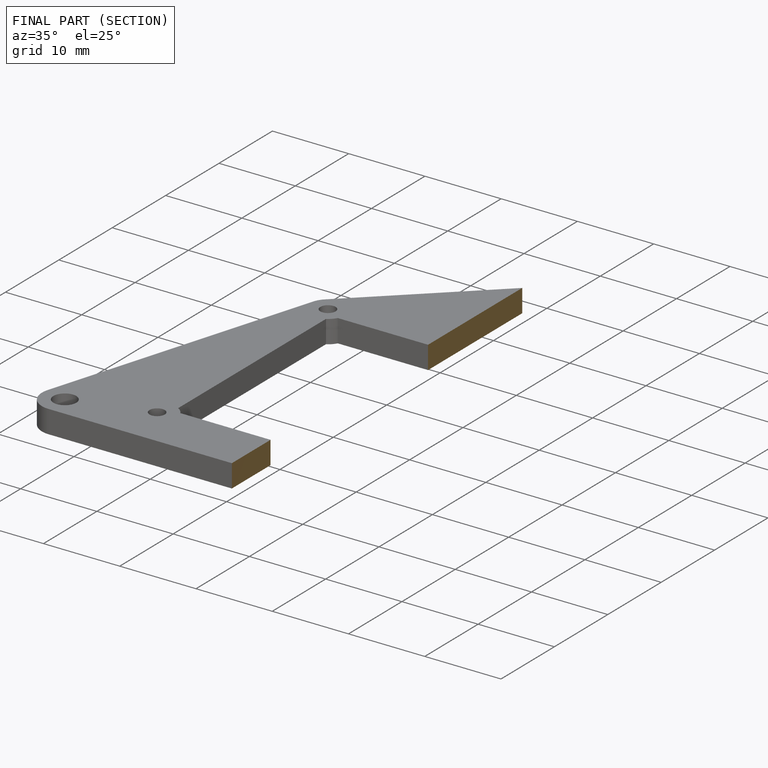
[diagram: finished part — half-section view (interior)]
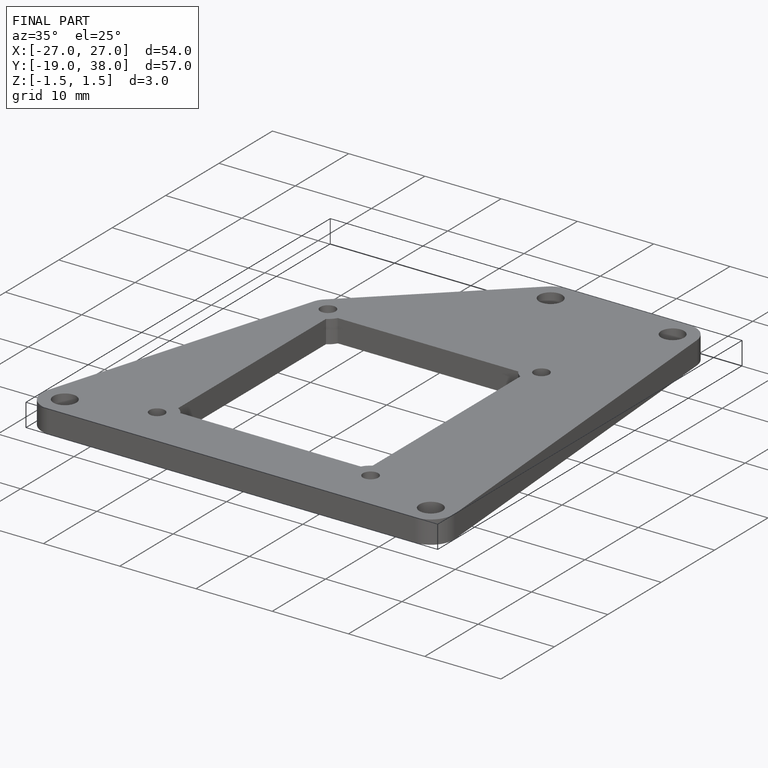
[diagram: finished part — iso view with bounding-box wireframe]
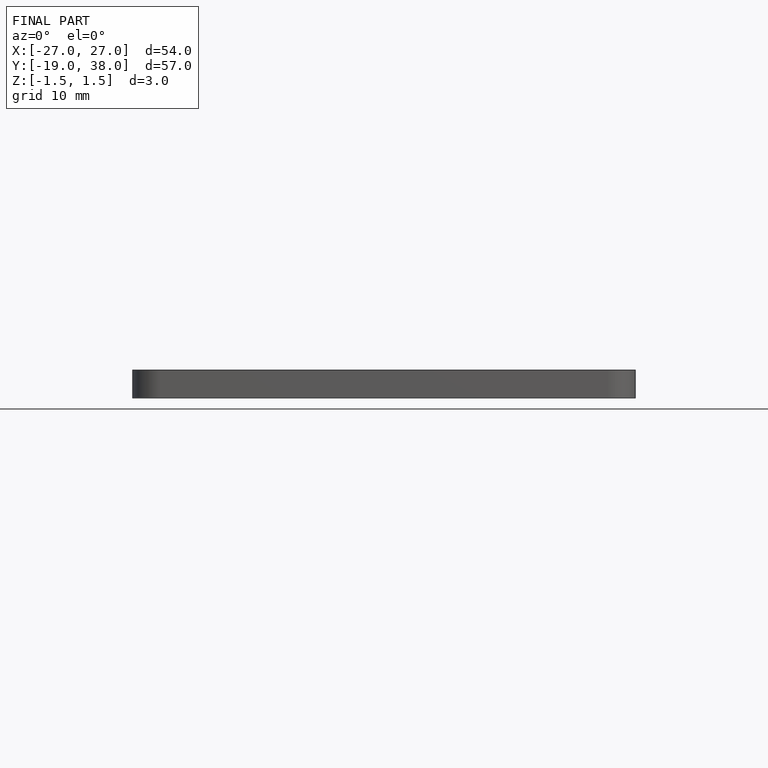
[diagram: finished part — front view with bounding-box wireframe]
